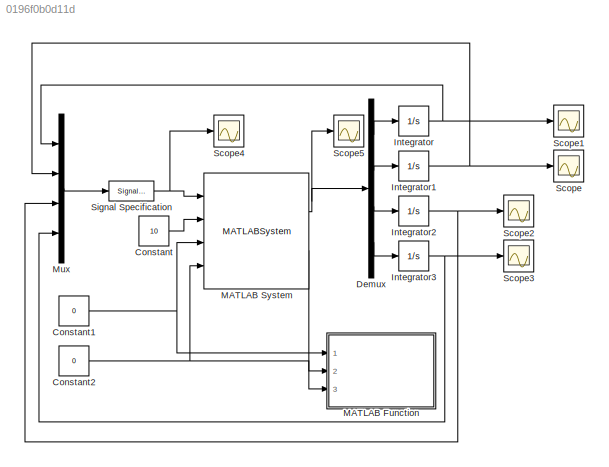
MODEL slx_0196f0b0d11d
KIND model
CONFIG AbsTol = auto
CONFIG FixedStep = auto
CONFIG MaxStep = auto
CONFIG MinStep = auto
CONFIG RelTol = 1e-3
CONFIG SampleTimeConstraint = Unconstrained
CONFIG Solver = VariableStepAuto
CONFIG SolverMode = Auto
CONFIG SolverName = VariableStepAuto
CONFIG StartTime = 0.0
CONFIG StopTime = 1
BLOCK [Constant] Constant
  Value = 10
BLOCK [Constant] Constant1
  Value = 0
BLOCK [Constant] Constant2
  Value = 0
BLOCK [Demux] Demux
  DisplayOption = bar
  Ports = [1, 4]
BLOCK [Integrator] Integrator
  InitialCondition = pi/10
  Ports = [1, 1]
BLOCK [Integrator] Integrator1
  InitialCondition = pi/3
  Ports = [1, 1]
BLOCK [Integrator] Integrator2
  Ports = [1, 1]
BLOCK [Integrator] Integrator3
  Ports = [1, 1]
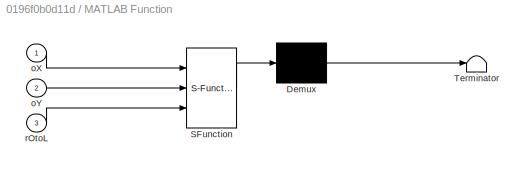
BLOCK [SubSystem] MATLAB Function
  ErrorFcn = Stateflow.Translate.translate
  PermitHierarchicalResolution = ExplicitOnly
  Ports = [3]
  RequestExecContextInheritance = off
  SFBlockType = MATLAB Function
  TreatAsAtomicUnit = on
  Variant = off
BLOCK [Demux] MATLAB Function/ Demux 
  Outputs = 1
  Ports = [1, 1]
BLOCK [S-Function] MATLAB Function/ SFunction 
  EnableBusSupport = on
  FunctionName = sf_sfun
  PortCounts = [3 1]
  Ports = [3, 1]
  SFunctionDeploymentMode = off
  Tag = Stateflow S-Function oneFingerSim 2
BLOCK [Terminator] MATLAB Function/ Terminator 
BLOCK [Inport] MATLAB Function/oX
  IconDisplay = Port number
BLOCK [Inport] MATLAB Function/oY
  IconDisplay = Port number
  Port = 2
BLOCK [Inport] MATLAB Function/rOtoL
  IconDisplay = Port number
  Port = 3
BLOCK [MATLABSystem] MATLAB System
  MaskDisplay = disp('Finger');\nport_label('input',1,'initVal');\nport_label('input',2,'fa');\nport_label('input',3,'oX');\nport_label('input',4,'oY');\nport_label('output',1,'xDot');\nport_label('output',2,'rOtoL');
  MaskType = Finger
  Ports = [4, 2]
  SimulateUsing = Interpreted execution
  System = Finger
  dD = -0.01
  dP = -0.01
  kD = -5
  kP = -1
  lD = 0.1
  lP = 0.1
  mD = 0.02
  mP = 0.02
  rD = 0.012
  rP = 0.02
  thetaD = pi/3
  thetaP = pi/10
BLOCK [Mux] Mux
  DisplayOption = bar
  Ports = [4, 1]
BLOCK [Scope] Scope
  Ports = [1]
  ScopeSpecificationString = Simulink.scopes.TimeScopeBlockCfg('CurrentConfiguration', extmgr.ConfigurationSet(extmgr.Configuration('Core','General UI',true),extmgr.Configuration('Core','Source UI',true),extmgr.Configuration('Sources','WiredSimulink',true),extmgr.Configuration('Visuals','Time Domain',true,'SerializedDisplays',{struct('MinYLimReal','-4.72746','MaxYLimReal','7.68412','YLabelReal','','MinYLimMag','0.00000','MaxY...<+1392ch>
BLOCK [Scope] Scope1
  Ports = [1]
  ScopeSpecificationString = Simulink.scopes.TimeScopeBlockCfg('CurrentConfiguration', extmgr.ConfigurationSet(extmgr.Configuration('Core','General UI',true),extmgr.Configuration('Core','Source UI',true),extmgr.Configuration('Sources','WiredSimulink',true,'DataLoggingVariableName','ScopeData1'),extmgr.Configuration('Visuals','Time Domain',true,'SerializedDisplays',{struct('MinYLimReal','-0.94438','MaxYLimReal','3.82763','YLab...<+1430ch>
BLOCK [Scope] Scope2
  Ports = [1]
  ScopeSpecificationString = Simulink.scopes.TimeScopeBlockCfg('CurrentConfiguration', extmgr.ConfigurationSet(extmgr.Configuration('Core','General UI',true),extmgr.Configuration('Core','Source UI',true),extmgr.Configuration('Sources','WiredSimulink',true,'DataLoggingVariableName','ScopeData2'),extmgr.Configuration('Visuals','Time Domain',true,'SerializedDisplays',{struct('MinYLimReal','-9.67292','MaxYLimReal','10.14029','YLa...<+1429ch>
BLOCK [Scope] Scope3
  Ports = [1]
  ScopeSpecificationString = Simulink.scopes.TimeScopeBlockCfg('CurrentConfiguration', extmgr.ConfigurationSet(extmgr.Configuration('Core','General UI',true),extmgr.Configuration('Core','Source UI',true),extmgr.Configuration('Sources','WiredSimulink',true,'DataLoggingVariableName','ScopeData3'),extmgr.Configuration('Visuals','Time Domain',true,'SerializedDisplays',{struct('MinYLimReal','-24.87201','MaxYLimReal','21.30563','YL...<+1418ch>
BLOCK [Scope] Scope4
  Ports = [1]
  ScopeSpecificationString = Simulink.scopes.TimeScopeBlockCfg('CurrentConfiguration', extmgr.ConfigurationSet(extmgr.Configuration('Core','General UI',true),extmgr.Configuration('Core','Source UI',true),extmgr.Configuration('Sources','WiredSimulink',true,'DataLoggingVariableName','ScopeData1'),extmgr.Configuration('Visuals','Time Domain',true,'SerializedDisplays',{struct('MinYLimReal','-24.87201','MaxYLimReal','21.30563','YL...<+1568ch>
BLOCK [Scope] Scope5
  Ports = [1]
  ScopeSpecificationString = Simulink.scopes.TimeScopeBlockCfg('CurrentConfiguration', extmgr.ConfigurationSet(extmgr.Configuration('Core','General UI',true),extmgr.Configuration('Core','Source UI',true),extmgr.Configuration('Sources','WiredSimulink',true,'DataLoggingVariableName','ScopeData2'),extmgr.Configuration('Visuals','Time Domain',true,'SerializedDisplays',{struct('MinYLimReal','-79718.30141','MaxYLimReal','141650.216...<+1556ch>
BLOCK [SignalSpecification] Signal Specification
  Dimensions = 4
NET Constant1:1 -> MATLAB Function:1, MATLAB System:3
NET Constant2:1 -> MATLAB Function:2, MATLAB System:4
LINE Constant:1 -> MATLAB System:2
LINE Demux:1 -> Integrator:1
LINE Demux:2 -> Integrator1:1
LINE Demux:3 -> Integrator2:1
LINE Demux:4 -> Integrator3:1
NET Integrator1:1 -> Mux:2, Scope:1
NET Integrator2:1 -> Mux:3, Scope2:1
NET Integrator3:1 -> Mux:4, Scope3:1
NET Integrator:1 -> Mux:1, Scope1:1
NET MATLAB System:1 -> Demux:1, Scope5:1
LINE MATLAB System:2 -> MATLAB Function:3
LINE Mux:1 -> Signal Specification:1
NET Signal Specification:1 -> MATLAB System:1, Scope4:1
note: NET lines group one-source signal fan-out (src -> all destinations, sorted); 1:1 wires keep LINE
CHART MATLAB Function states=1 transitions=1
  STATE_LABEL 'eML_blk_kernel()'
  STATE_LABEL "SCRIPT:\nfunction plotFinger(oX,oY,rOtoL)\n%#codegen\n    % Call figure\n    figure(1);\n    clf;\n    hold on;\n    % Draw Proximal components of finger\n%     viscircles(finger.origin,0.005,'Color', 'k','LineWidth',8);\n    plot([oX rOtoL(1,1)],[oY rOtoL(2,1)],'LineWidth',8,'Color', 'k');\n    % Draw Distal components of finger\n%     viscircles(rOtoL(:,1)',0.005,'Color', 'k','LineWidth',8);\n    plot([rOto...<+206ch>"
